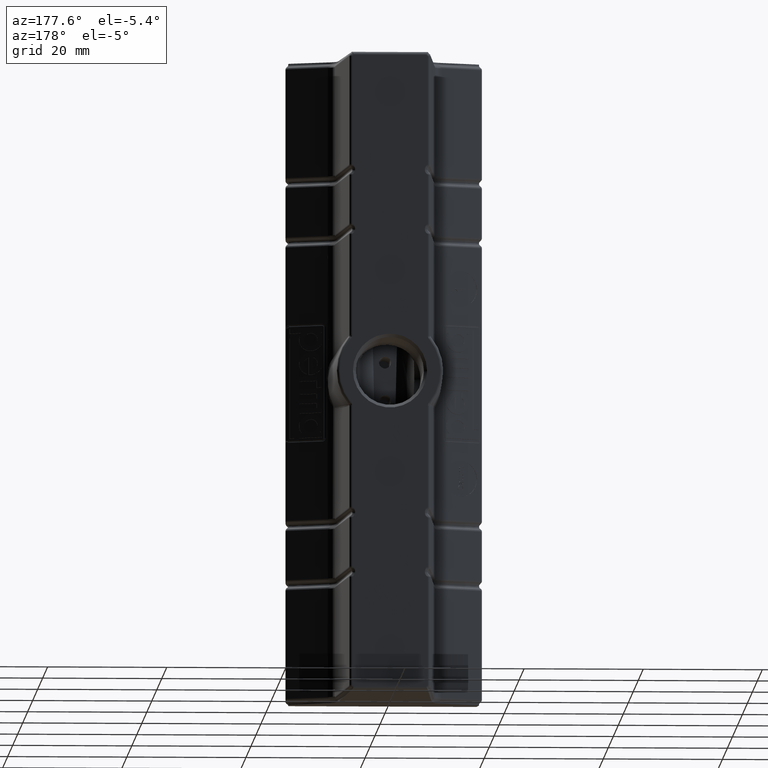
[diagram: clean part render]
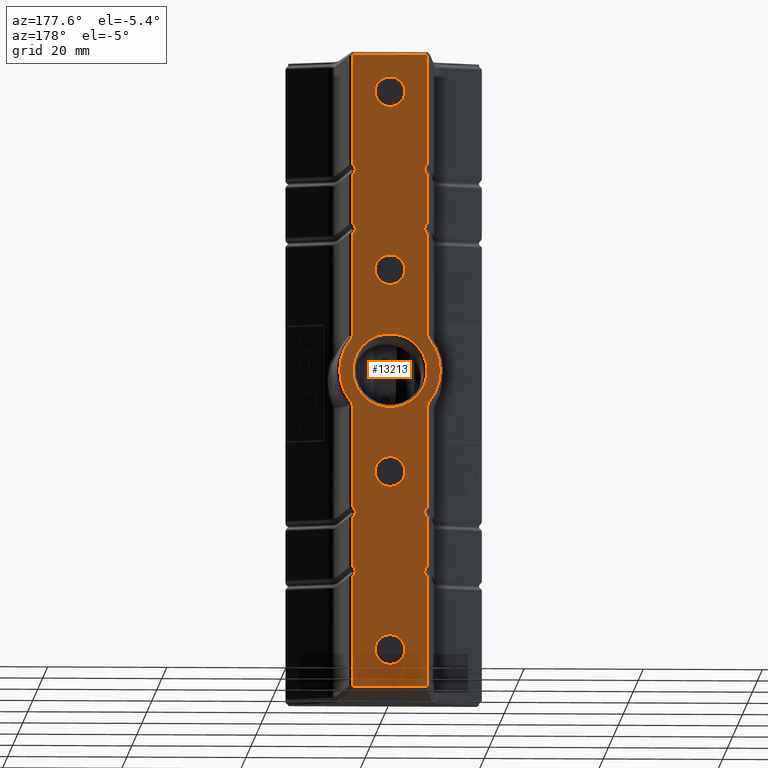
[diagram: same view with one face highlighted and labeled with its STEP entity id]
A machine part, auxiliary view. The second image highlights one B-rep face of the part: STEP entity #13213.
In plain terms, the highlighted planar face has unit normal (-0, 1, 0).
Its self-contained STEP definition (entity closure, byte-faithful):
#118=FACE_BOUND('',#4366,.T.);
#119=FACE_BOUND('',#4367,.T.);
#120=FACE_BOUND('',#4368,.T.);
#121=FACE_BOUND('',#4369,.T.);
#122=FACE_BOUND('',#4370,.T.);
#341=LINE('',#19714,#1484);
#344=LINE('',#19775,#1487);
#346=LINE('',#19834,#1489);
#348=LINE('',#19893,#1491);
#349=LINE('',#19954,#1492);
#352=LINE('',#20014,#1495);
#354=LINE('',#20073,#1497);
#355=LINE('',#20079,#1498);
#357=LINE('',#20186,#1500);
#359=LINE('',#20245,#1502);
#361=LINE('',#20304,#1504);
#362=LINE('',#20365,#1505);
#365=LINE('',#20425,#1508);
#367=LINE('',#20483,#1510);
#1484=VECTOR('',#15312,10.);
#1487=VECTOR('',#15331,10.);
#1489=VECTOR('',#15351,10.);
#1491=VECTOR('',#15371,10.);
#1492=VECTOR('',#15396,10.);
#1495=VECTOR('',#15417,10.);
#1497=VECTOR('',#15437,10.);
#1498=VECTOR('',#15444,10.);
#1500=VECTOR('',#15472,10.);
#1502=VECTOR('',#15492,10.);
#1504=VECTOR('',#15512,10.);
#1505=VECTOR('',#15537,10.);
#1508=VECTOR('',#15558,10.);
#1510=VECTOR('',#15578,10.);
#2628=PLANE('',#14286);
#3023=ELLIPSE('',#14123,0.89513409725537,0.780935074459176);
#3026=ELLIPSE('',#14127,0.895134097819301,0.780935075240946);
#3028=ELLIPSE('',#14152,0.879716549367542,0.755818027588573);
#3030=ELLIPSE('',#14159,0.87971654920072,0.75581802729634);
#3034=ELLIPSE('',#14186,0.895134097541704,0.780935074802233);
#3037=ELLIPSE('',#14191,0.895134097455745,0.780935074781827);
#3038=ELLIPSE('',#14216,0.879716549368745,0.755818027590411);
#3040=ELLIPSE('',#14223,0.879716549200204,0.755818027295634);
#3504=FACE_OUTER_BOUND('',#4365,.T.);
#4365=EDGE_LOOP('',(#9495,#9496,#9497,#9498,#9499,#9500,#9501,#9502,#9503,
#9504,#9505,#9506,#9507,#9508,#9509,#9510,#9511,#9512,#9513,#9514,#9515,
#9516,#9517,#9518,#9519,#9520,#9521,#9522,#9523,#9524,#9525,#9526));
#4366=EDGE_LOOP('',(#9527));
#4367=EDGE_LOOP('',(#9528));
#4368=EDGE_LOOP('',(#9529));
#4369=EDGE_LOOP('',(#9530));
#4370=EDGE_LOOP('',(#9531));
#5203=B_SPLINE_CURVE_WITH_KNOTS('',3,(#19811,#19812,#19813,#19814,#19815,
#19816),.UNSPECIFIED.,.F.,.F.,(4,1,1,4),(-0.209348030513739,-0.149534309483464,
-0.0897205856900786,0.),.UNSPECIFIED.);
#5205=B_SPLINE_CURVE_WITH_KNOTS('',3,(#19870,#19871,#19872,#19873,#19874,
#19875),.UNSPECIFIED.,.F.,.F.,(4,1,1,4),(-0.209348030513742,-0.149534309483466,
-0.0897205856900795,0.),.UNSPECIFIED.);
#5207=B_SPLINE_CURVE_WITH_KNOTS('',3,(#19991,#19992,#19993,#19994,#19995,
#19996),.UNSPECIFIED.,.F.,.F.,(4,1,1,4),(-0.209348030513744,-0.149534309483469,
-0.0897205856900813,0.),.UNSPECIFIED.);
#5209=B_SPLINE_CURVE_WITH_KNOTS('',3,(#20050,#20051,#20052,#20053,#20054,
#20055),.UNSPECIFIED.,.F.,.F.,(4,1,1,4),(-0.209348030513745,-0.149534309483469,
-0.0897205856900812,0.),.UNSPECIFIED.);
#5213=B_SPLINE_CURVE_WITH_KNOTS('',3,(#20222,#20223,#20224,#20225,#20226,
#20227),.UNSPECIFIED.,.F.,.F.,(4,1,1,4),(-0.209348030514628,-0.1495343094841,
-0.0897205856904598,0.),.UNSPECIFIED.);
#5215=B_SPLINE_CURVE_WITH_KNOTS('',3,(#20281,#20282,#20283,#20284,#20285,
#20286),.UNSPECIFIED.,.F.,.F.,(4,1,1,4),(-0.209348030514627,-0.11962744758728,
-0.0598137237936398,0.),.UNSPECIFIED.);
#5217=B_SPLINE_CURVE_WITH_KNOTS('',3,(#20402,#20403,#20404,#20405,#20406,
#20407),.UNSPECIFIED.,.F.,.F.,(4,1,1,4),(-0.209348030514623,-0.149534309484097,
-0.089720585690458,0.),.UNSPECIFIED.);
#5219=B_SPLINE_CURVE_WITH_KNOTS('',3,(#20461,#20462,#20463,#20464,#20465,
#20466),.UNSPECIFIED.,.F.,.F.,(4,1,1,4),(-0.209348030514623,-0.149534309484096,
-0.0897205856904577,0.),.UNSPECIFIED.);
#5580=CIRCLE('',#14156,8.44745676061619);
#5616=CIRCLE('',#14220,8.44745676061619);
#5643=CIRCLE('',#14287,6.2225);
#5644=CIRCLE('',#14288,2.5);
#5645=CIRCLE('',#14289,2.5);
#5646=CIRCLE('',#14290,2.50000000000001);
#5647=CIRCLE('',#14291,2.50000000000001);
#5937=VERTEX_POINT('',#19686);
#5938=VERTEX_POINT('',#19688);
#5939=VERTEX_POINT('',#19713);
#5943=VERTEX_POINT('',#19763);
#5947=VERTEX_POINT('',#19773);
#5949=VERTEX_POINT('',#19809);
#5953=VERTEX_POINT('',#19832);
#5955=VERTEX_POINT('',#19868);
#5959=VERTEX_POINT('',#19891);
#5961=VERTEX_POINT('',#19915);
#5963=VERTEX_POINT('',#19921);
#5965=VERTEX_POINT('',#19946);
#5967=VERTEX_POINT('',#19952);
#5969=VERTEX_POINT('',#19989);
#5973=VERTEX_POINT('',#20012);
#5975=VERTEX_POINT('',#20048);
#5979=VERTEX_POINT('',#20071);
#5980=VERTEX_POINT('',#20077);
#5981=VERTEX_POINT('',#20078);
#5986=VERTEX_POINT('',#20174);
#5989=VERTEX_POINT('',#20184);
#5991=VERTEX_POINT('',#20220);
#5995=VERTEX_POINT('',#20243);
#5997=VERTEX_POINT('',#20279);
#6001=VERTEX_POINT('',#20302);
#6003=VERTEX_POINT('',#20326);
#6005=VERTEX_POINT('',#20332);
#6007=VERTEX_POINT('',#20357);
#6009=VERTEX_POINT('',#20363);
#6011=VERTEX_POINT('',#20400);
#6015=VERTEX_POINT('',#20423);
#6017=VERTEX_POINT('',#20459);
#6057=VERTEX_POINT('',#20889);
#6058=VERTEX_POINT('',#20891);
#6059=VERTEX_POINT('',#20893);
#6060=VERTEX_POINT('',#20895);
#6061=VERTEX_POINT('',#20897);
#7153=EDGE_CURVE('',#5937,#5938,#3023,.T.);
#7155=EDGE_CURVE('',#5938,#5939,#341,.T.);
#7160=EDGE_CURVE('',#5939,#5943,#3026,.T.);
#7166=EDGE_CURVE('',#5947,#5937,#344,.T.);
#7169=EDGE_CURVE('',#5949,#5947,#5203,.T.);
#7176=EDGE_CURVE('',#5953,#5949,#346,.T.);
#7179=EDGE_CURVE('',#5955,#5953,#5205,.T.);
#7186=EDGE_CURVE('',#5959,#5955,#348,.T.);
#7188=EDGE_CURVE('',#5961,#5959,#3028,.T.);
#7191=EDGE_CURVE('',#5963,#5961,#5580,.T.);
#7194=EDGE_CURVE('',#5965,#5963,#3030,.T.);
#7197=EDGE_CURVE('',#5967,#5965,#349,.T.);
#7201=EDGE_CURVE('',#5969,#5967,#5207,.T.);
#7208=EDGE_CURVE('',#5973,#5969,#352,.T.);
#7211=EDGE_CURVE('',#5975,#5973,#5209,.T.);
#7218=EDGE_CURVE('',#5979,#5975,#354,.T.);
#7220=EDGE_CURVE('',#5980,#5981,#355,.T.);
#7225=EDGE_CURVE('',#5981,#5979,#3034,.T.);
#7230=EDGE_CURVE('',#5986,#5980,#3037,.T.);
#7235=EDGE_CURVE('',#5989,#5986,#357,.T.);
#7238=EDGE_CURVE('',#5991,#5989,#5213,.T.);
#7245=EDGE_CURVE('',#5995,#5991,#359,.T.);
#7248=EDGE_CURVE('',#5997,#5995,#5215,.T.);
#7255=EDGE_CURVE('',#6001,#5997,#361,.T.);
#7257=EDGE_CURVE('',#6003,#6001,#3038,.T.);
#7260=EDGE_CURVE('',#6005,#6003,#5616,.T.);
#7263=EDGE_CURVE('',#6007,#6005,#3040,.T.);
#7266=EDGE_CURVE('',#6009,#6007,#362,.T.);
#7270=EDGE_CURVE('',#6011,#6009,#5217,.T.);
#7277=EDGE_CURVE('',#6015,#6011,#365,.T.);
#7280=EDGE_CURVE('',#6017,#6015,#5219,.T.);
#7287=EDGE_CURVE('',#5943,#6017,#367,.T.);
#7352=EDGE_CURVE('',#6057,#6057,#5643,.T.);
#7353=EDGE_CURVE('',#6058,#6058,#5644,.T.);
#7354=EDGE_CURVE('',#6059,#6059,#5645,.T.);
#7355=EDGE_CURVE('',#6060,#6060,#5646,.T.);
#7356=EDGE_CURVE('',#6061,#6061,#5647,.T.);
#9495=ORIENTED_EDGE('',*,*,#7220,.F.);
#9496=ORIENTED_EDGE('',*,*,#7230,.F.);
#9497=ORIENTED_EDGE('',*,*,#7235,.F.);
#9498=ORIENTED_EDGE('',*,*,#7238,.F.);
#9499=ORIENTED_EDGE('',*,*,#7245,.F.);
#9500=ORIENTED_EDGE('',*,*,#7248,.F.);
#9501=ORIENTED_EDGE('',*,*,#7255,.F.);
#9502=ORIENTED_EDGE('',*,*,#7257,.F.);
#9503=ORIENTED_EDGE('',*,*,#7260,.F.);
#9504=ORIENTED_EDGE('',*,*,#7263,.F.);
#9505=ORIENTED_EDGE('',*,*,#7266,.F.);
#9506=ORIENTED_EDGE('',*,*,#7270,.F.);
#9507=ORIENTED_EDGE('',*,*,#7277,.F.);
#9508=ORIENTED_EDGE('',*,*,#7280,.F.);
#9509=ORIENTED_EDGE('',*,*,#7287,.F.);
#9510=ORIENTED_EDGE('',*,*,#7160,.F.);
#9511=ORIENTED_EDGE('',*,*,#7155,.F.);
#9512=ORIENTED_EDGE('',*,*,#7153,.F.);
#9513=ORIENTED_EDGE('',*,*,#7166,.F.);
#9514=ORIENTED_EDGE('',*,*,#7169,.F.);
#9515=ORIENTED_EDGE('',*,*,#7176,.F.);
#9516=ORIENTED_EDGE('',*,*,#7179,.F.);
#9517=ORIENTED_EDGE('',*,*,#7186,.F.);
#9518=ORIENTED_EDGE('',*,*,#7188,.F.);
#9519=ORIENTED_EDGE('',*,*,#7191,.F.);
#9520=ORIENTED_EDGE('',*,*,#7194,.F.);
#9521=ORIENTED_EDGE('',*,*,#7197,.F.);
#9522=ORIENTED_EDGE('',*,*,#7201,.F.);
#9523=ORIENTED_EDGE('',*,*,#7208,.F.);
#9524=ORIENTED_EDGE('',*,*,#7211,.F.);
#9525=ORIENTED_EDGE('',*,*,#7218,.F.);
#9526=ORIENTED_EDGE('',*,*,#7225,.F.);
#9527=ORIENTED_EDGE('',*,*,#7352,.F.);
#9528=ORIENTED_EDGE('',*,*,#7353,.T.);
#9529=ORIENTED_EDGE('',*,*,#7354,.T.);
#9530=ORIENTED_EDGE('',*,*,#7355,.T.);
#9531=ORIENTED_EDGE('',*,*,#7356,.T.);
#13213=ADVANCED_FACE('',(#3504,#118,#119,#120,#121,#122),#2628,.T.);
#14123=AXIS2_PLACEMENT_3D('',#19689,#15308,#15309);
#14127=AXIS2_PLACEMENT_3D('',#19764,#15318,#15319);
#14152=AXIS2_PLACEMENT_3D('',#19917,#15374,#15375);
#14156=AXIS2_PLACEMENT_3D('',#19923,#15382,#15383);
#14159=AXIS2_PLACEMENT_3D('',#19948,#15388,#15389);
#14186=AXIS2_PLACEMENT_3D('',#20148,#15449,#15450);
#14191=AXIS2_PLACEMENT_3D('',#20176,#15459,#15460);
#14216=AXIS2_PLACEMENT_3D('',#20328,#15515,#15516);
#14220=AXIS2_PLACEMENT_3D('',#20334,#15523,#15524);
#14223=AXIS2_PLACEMENT_3D('',#20359,#15529,#15530);
#14286=AXIS2_PLACEMENT_3D('',#20888,#15689,#15690);
#14287=AXIS2_PLACEMENT_3D('',#20890,#15691,#15692);
#14288=AXIS2_PLACEMENT_3D('',#20892,#15693,#15694);
#14289=AXIS2_PLACEMENT_3D('',#20894,#15695,#15696);
#14290=AXIS2_PLACEMENT_3D('',#20896,#15697,#15698);
#14291=AXIS2_PLACEMENT_3D('',#20898,#15699,#15700);
#15308=DIRECTION('center_axis',(0.,1.,0.));
#15309=DIRECTION('ref_axis',(-0.603434912811392,0.,0.797412255988273));
#15312=DIRECTION('',(-1.,-5.55111512312578E-17,-2.0621079590502E-17));
#15318=DIRECTION('center_axis',(-1.74332394659838E-13,1.,1.62044371356522E-13));
#15319=DIRECTION('ref_axis',(0.603434913213689,-2.40179142423801E-14,0.797412255683839));
#15331=DIRECTION('',(0.,0.,1.));
#15351=DIRECTION('',(0.,0.,1.));
#15371=DIRECTION('',(0.,0.,1.));
#15374=DIRECTION('center_axis',(0.,1.,0.));
#15375=DIRECTION('ref_axis',(-0.346299722658832,0.,0.938123926827589));
#15382=DIRECTION('center_axis',(5.55111512312578E-17,-1.,0.));
#15383=DIRECTION('ref_axis',(1.,5.55111512312578E-17,0.));
#15388=DIRECTION('center_axis',(0.,1.,0.));
#15389=DIRECTION('ref_axis',(0.346299722471347,0.,0.938123926896797));
#15396=DIRECTION('',(0.,0.,1.));
#15417=DIRECTION('',(0.,0.,1.));
#15437=DIRECTION('',(0.,0.,1.));
#15444=DIRECTION('',(1.,5.55111512312578E-17,-2.0621079590502E-17));
#15449=DIRECTION('center_axis',(0.,1.,0.));
#15450=DIRECTION('ref_axis',(0.603434913651746,0.,0.797412255352343));
#15459=DIRECTION('center_axis',(0.,1.,0.));
#15460=DIRECTION('ref_axis',(-0.603434912499908,0.,0.797412256223986));
#15472=DIRECTION('',(0.,0.,-1.));
#15492=DIRECTION('',(0.,0.,-1.));
#15512=DIRECTION('',(0.,0.,-1.));
#15515=DIRECTION('center_axis',(0.,1.,0.));
#15516=DIRECTION('ref_axis',(-0.346299722661979,0.,0.938123926826427));
#15523=DIRECTION('center_axis',(5.55111512312578E-17,-1.,0.));
#15524=DIRECTION('ref_axis',(-1.,-5.55111512312578E-17,-2.9822874952357E-15));
#15529=DIRECTION('center_axis',(0.,1.,0.));
#15530=DIRECTION('ref_axis',(0.34629972247162,0.,0.938123926896697));
#15537=DIRECTION('',(0.,0.,-1.));
#15558=DIRECTION('',(0.,0.,-1.));
#15578=DIRECTION('',(0.,0.,-1.));
#15689=DIRECTION('center_axis',(-5.55111512312578E-17,1.,0.));
#15690=DIRECTION('ref_axis',(0.,0.,1.));
#15691=DIRECTION('center_axis',(-5.55111512312578E-17,1.,0.));
#15692=DIRECTION('ref_axis',(-1.,-5.55111512312578E-17,0.));
#15693=DIRECTION('center_axis',(5.55111512312578E-17,-1.,0.));
#15694=DIRECTION('ref_axis',(1.,5.55111512312578E-17,0.));
#15695=DIRECTION('center_axis',(5.55111512312578E-17,-1.,0.));
#15696=DIRECTION('ref_axis',(1.,5.55111512312578E-17,0.));
#15697=DIRECTION('center_axis',(5.55111512312578E-17,-1.,0.));
#15698=DIRECTION('ref_axis',(1.,5.55111512312578E-17,0.));
#15699=DIRECTION('center_axis',(5.55111512312578E-17,-1.,0.));
#15700=DIRECTION('ref_axis',(1.,5.55111512312578E-17,2.2695510649001E-31));
#19686=CARTESIAN_POINT('',(6.34105048528644,2.5,86.7644204289066));
#19688=CARTESIAN_POINT('',(6.07528105088956,2.49999999999803,86.9886264960854));
#19689=CARTESIAN_POINT('Origin',(6.66653754661323,2.49999999999999,87.4993963017588));
#19713=CARTESIAN_POINT('',(-6.07528105096103,2.49999999999803,86.9886264960814));
#19714=CARTESIAN_POINT('',(9.79557725964591E-13,2.5,86.988624879357));
#19763=CARTESIAN_POINT('',(-6.34105048650145,2.5,86.7644204282025));
#19764=CARTESIAN_POINT('Origin',(-6.66653754728928,2.49999999999981,87.4993963021752));
#19773=CARTESIAN_POINT('',(6.34105048574206,2.5,68.4955795713645));
#19775=CARTESIAN_POINT('',(6.34105048710894,2.5,18.7505));
#19809=CARTESIAN_POINT('',(6.34105051422534,2.5,66.7644204121902));
#19811=CARTESIAN_POINT('Ctrl Pts',(6.34105051422539,2.5,66.7644204121902));
#19812=CARTESIAN_POINT('Ctrl Pts',(6.16840525256416,2.5,66.8641481775944));
#19813=CARTESIAN_POINT('Ctrl Pts',(5.8856560921311,2.5,67.1688626699453));
#19814=CARTESIAN_POINT('Ctrl Pts',(5.77518705884517,2.49999999999999,67.891938570282));
#19815=CARTESIAN_POINT('Ctrl Pts',(6.08208258511024,2.5,68.3459879070662));
#19816=CARTESIAN_POINT('Ctrl Pts',(6.34105048467896,2.49999999999999,68.4955795707503));
#19832=CARTESIAN_POINT('',(6.34105048574206,2.5,58.4955795713646));
#19834=CARTESIAN_POINT('',(6.34105048710894,2.5,18.7505));
#19868=CARTESIAN_POINT('',(6.34105051422534,2.5,56.7644204121902));
#19870=CARTESIAN_POINT('Ctrl Pts',(6.34105051422539,2.5,56.7644204121903));
#19871=CARTESIAN_POINT('Ctrl Pts',(6.1684052525641,2.5,56.8641481775944));
#19872=CARTESIAN_POINT('Ctrl Pts',(5.88565486949351,2.5,57.1688631741059));
#19873=CARTESIAN_POINT('Ctrl Pts',(5.77518500182001,2.5,57.8919397441996));
#19874=CARTESIAN_POINT('Ctrl Pts',(6.08208258511027,2.5,58.3459879070662));
#19875=CARTESIAN_POINT('Ctrl Pts',(6.34105048467897,2.5,58.4955795707503));
#19891=CARTESIAN_POINT('',(6.34105048710894,2.5,39.6978002169157));
#19893=CARTESIAN_POINT('',(6.34105048710894,2.5,18.7505));
#19915=CARTESIAN_POINT('',(6.56517154520355,2.5,39.0658299732525));
#19917=CARTESIAN_POINT('Origin',(7.11277726316907,2.5,39.6123863649244));
#19921=CARTESIAN_POINT('',(6.56517154505481,2.5,28.4341700265638));
#19923=CARTESIAN_POINT('Origin',(9.71445146547012E-16,2.5,33.75));
#19946=CARTESIAN_POINT('',(6.34105048710894,2.5,27.8021997830843));
#19948=CARTESIAN_POINT('Origin',(7.11277726287733,2.5,27.8876136351301));
#19952=CARTESIAN_POINT('',(6.34105048574206,2.5,10.7355795713645));
#19954=CARTESIAN_POINT('',(6.34105048710894,2.5,18.7505));
#19989=CARTESIAN_POINT('',(6.34105051422534,2.5,9.00442041219017));
#19991=CARTESIAN_POINT('Ctrl Pts',(6.34105051422538,2.5,9.00442041219024));
#19992=CARTESIAN_POINT('Ctrl Pts',(6.16840525256308,2.5,9.10414817759479));
#19993=CARTESIAN_POINT('Ctrl Pts',(5.88563275835521,2.5,9.40887221974242));
#19994=CARTESIAN_POINT('Ctrl Pts',(5.77514744563837,2.5,10.1319612413434));
#19995=CARTESIAN_POINT('Ctrl Pts',(6.08208258511026,2.5,10.5859879070663));
#19996=CARTESIAN_POINT('Ctrl Pts',(6.34105048467897,2.5,10.7355795707503));
#20012=CARTESIAN_POINT('',(6.34105048574206,2.5,0.735579571364537));
#20014=CARTESIAN_POINT('',(6.34105048710894,2.5,18.7505));
#20048=CARTESIAN_POINT('',(6.34105051422534,2.5,-0.995579587809841));
#20050=CARTESIAN_POINT('Ctrl Pts',(6.34105051422538,2.5,-0.995579587809759));
#20051=CARTESIAN_POINT('Ctrl Pts',(6.16840525256178,2.5,-0.895851822404695));
#20052=CARTESIAN_POINT('Ctrl Pts',(5.88560467929521,2.5,-0.59111650884501));
#20053=CARTESIAN_POINT('Ctrl Pts',(5.77509868837583,2.5,0.131989340835466));
#20054=CARTESIAN_POINT('Ctrl Pts',(6.08208258511026,2.5,0.585987907066242));
#20055=CARTESIAN_POINT('Ctrl Pts',(6.34105048467897,2.5,0.735579570750299));
#20071=CARTESIAN_POINT('',(6.34105048650145,2.5,-19.2644204281968));
#20073=CARTESIAN_POINT('',(6.34105048710894,2.5,18.7505));
#20077=CARTESIAN_POINT('',(-6.07528105153822,2.49999999999804,-19.4886264956363));
#20078=CARTESIAN_POINT('',(6.07528105155501,2.49999999999804,-19.4886264956368));
#20079=CARTESIAN_POINT('',(9.80872319788486E-13,2.5,-19.4886248793491));
#20148=CARTESIAN_POINT('Origin',(6.66653754702688,2.5,-19.9993963017922));
#20174=CARTESIAN_POINT('',(-6.34105048528648,2.5,-19.2644204288965));
#20176=CARTESIAN_POINT('Origin',(-6.66653754680794,2.5,-19.9993963020232));
#20184=CARTESIAN_POINT('',(-6.34105048574207,2.5,-0.995579571358841));
#20186=CARTESIAN_POINT('',(-6.34105048710894,2.5,18.7505));
#20220=CARTESIAN_POINT('',(-6.34105051422534,2.5,0.735579587819954));
#20222=CARTESIAN_POINT('Ctrl Pts',(-6.34105051422539,2.5,0.735579587819869));
#20223=CARTESIAN_POINT('Ctrl Pts',(-6.16840525256063,2.5,0.635851822415147));
#20224=CARTESIAN_POINT('Ctrl Pts',(-5.88560467929135,2.5,0.331116508854794));
#20225=CARTESIAN_POINT('Ctrl Pts',(-5.77509868837063,2.5,-0.391989340829248));
#20226=CARTESIAN_POINT('Ctrl Pts',(-6.08208258510852,2.5,-0.845987907061056));
#20227=CARTESIAN_POINT('Ctrl Pts',(-6.34105048467898,2.5,-0.995579570744603));
#20243=CARTESIAN_POINT('',(-6.34105048574207,2.5,9.00442042864116));
#20245=CARTESIAN_POINT('',(-6.34105048710894,2.5,18.7505));
#20279=CARTESIAN_POINT('',(-6.34105051422534,2.5,10.7355795878199));
#20281=CARTESIAN_POINT('Ctrl Pts',(-6.34105051422539,2.5,10.7355795878198));
#20282=CARTESIAN_POINT('Ctrl Pts',(-6.08208261801855,2.5,10.5859879371404));
#20283=CARTESIAN_POINT('Ctrl Pts',(-5.77516086407033,2.5,10.1319922334867));
#20284=CARTESIAN_POINT('Ctrl Pts',(-5.88561492042804,2.5,9.40888858453442));
#20285=CARTESIAN_POINT('Ctrl Pts',(-6.16840521829867,2.5,9.10414820504444));
#20286=CARTESIAN_POINT('Ctrl Pts',(-6.34105048467898,2.5,9.0044204292554));
#20302=CARTESIAN_POINT('',(-6.34105048710894,2.5,27.8021997830843));
#20304=CARTESIAN_POINT('',(-6.34105048710894,2.5,18.7505));
#20326=CARTESIAN_POINT('',(-6.56517154520355,2.5,28.4341700267475));
#20328=CARTESIAN_POINT('Origin',(-7.1127772631711,2.5,27.8876136350757));
#20332=CARTESIAN_POINT('',(-6.56517154505482,2.5,39.0658299734362));
#20334=CARTESIAN_POINT('Origin',(9.71445146547012E-16,2.5,33.75));
#20357=CARTESIAN_POINT('',(-6.34105048710894,2.5,39.6978002169156));
#20359=CARTESIAN_POINT('Origin',(-7.11277726287667,2.5,39.6123863648696));
#20363=CARTESIAN_POINT('',(-6.34105048574207,2.5,56.7644204286412));
#20365=CARTESIAN_POINT('',(-6.34105048710894,2.5,18.7505));
#20400=CARTESIAN_POINT('',(-6.34105051422534,2.5,58.4955795878199));
#20402=CARTESIAN_POINT('Ctrl Pts',(-6.3410505142254,2.5,58.4955795878199));
#20403=CARTESIAN_POINT('Ctrl Pts',(-6.16840525256296,2.5,58.3958518224161));
#20404=CARTESIAN_POINT('Ctrl Pts',(-5.8856548694902,2.5,58.0911368259041));
#20405=CARTESIAN_POINT('Ctrl Pts',(-5.77518500181572,2.5,57.3680602558072));
#20406=CARTESIAN_POINT('Ctrl Pts',(-6.08208258510856,2.5,56.9140120929389));
#20407=CARTESIAN_POINT('Ctrl Pts',(-6.34105048467898,2.5,56.7644204292554));
#20423=CARTESIAN_POINT('',(-6.34105048574207,2.5,66.7644204286412));
#20425=CARTESIAN_POINT('',(-6.34105048710894,2.5,18.7505));
#20459=CARTESIAN_POINT('',(-6.34105051422534,2.5,68.4955795878199));
#20461=CARTESIAN_POINT('Ctrl Pts',(-6.34105051422539,2.5,68.4955795878198));
#20462=CARTESIAN_POINT('Ctrl Pts',(-6.16840525256301,2.5,68.3958518224161));
#20463=CARTESIAN_POINT('Ctrl Pts',(-5.88565609212766,2.5,68.0911373300646));
#20464=CARTESIAN_POINT('Ctrl Pts',(-5.77518705884073,2.5,67.3680614297247));
#20465=CARTESIAN_POINT('Ctrl Pts',(-6.08208258510858,2.5,66.9140120929389));
#20466=CARTESIAN_POINT('Ctrl Pts',(-6.34105048467899,2.5,66.7644204292554));
#20483=CARTESIAN_POINT('',(-6.34105048710894,2.5,18.7505));
#20888=CARTESIAN_POINT('Origin',(4.30211422042249E-15,2.5,-30.));
#20889=CARTESIAN_POINT('',(6.2225,2.5,33.75));
#20890=CARTESIAN_POINT('Origin',(9.71445146547012E-16,2.5,33.75));
#20891=CARTESIAN_POINT('',(-2.5,2.5,50.75));
#20892=CARTESIAN_POINT('Origin',(-1.38777878078145E-16,2.5,50.75));
#20893=CARTESIAN_POINT('',(-2.5,2.5,16.75));
#20894=CARTESIAN_POINT('Origin',(-1.38777878078145E-16,2.5,16.75));
#20895=CARTESIAN_POINT('',(-2.50000000000001,2.5,80.75));
#20896=CARTESIAN_POINT('Origin',(-1.38777878078145E-16,2.5,80.75));
#20897=CARTESIAN_POINT('',(-2.50000000000001,2.50000000000008,-13.2499999999921));
#20898=CARTESIAN_POINT('Origin',(-1.38777878078126E-16,2.50000000000007,
-13.2499999999921));